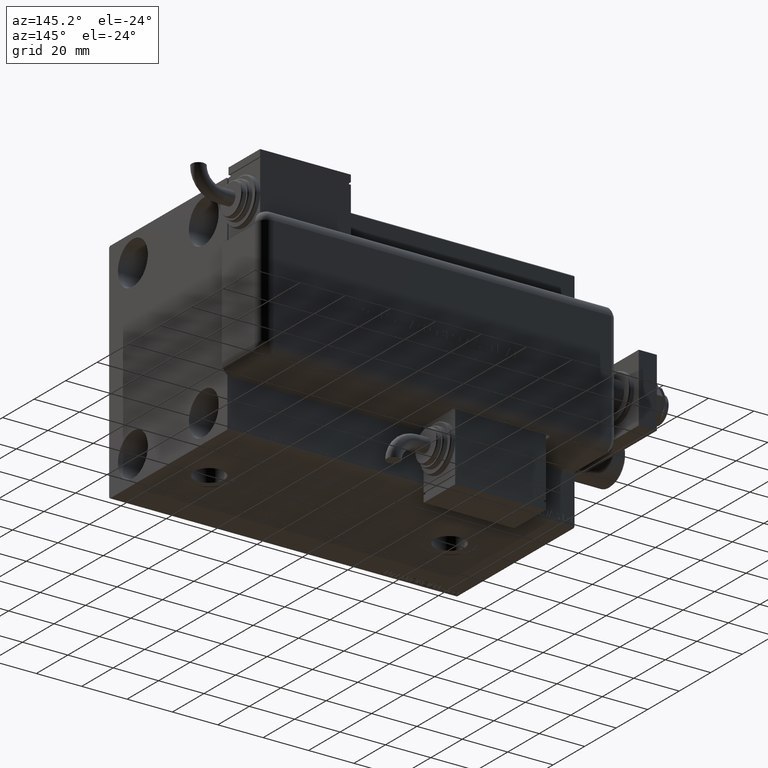
[diagram: clean part render]
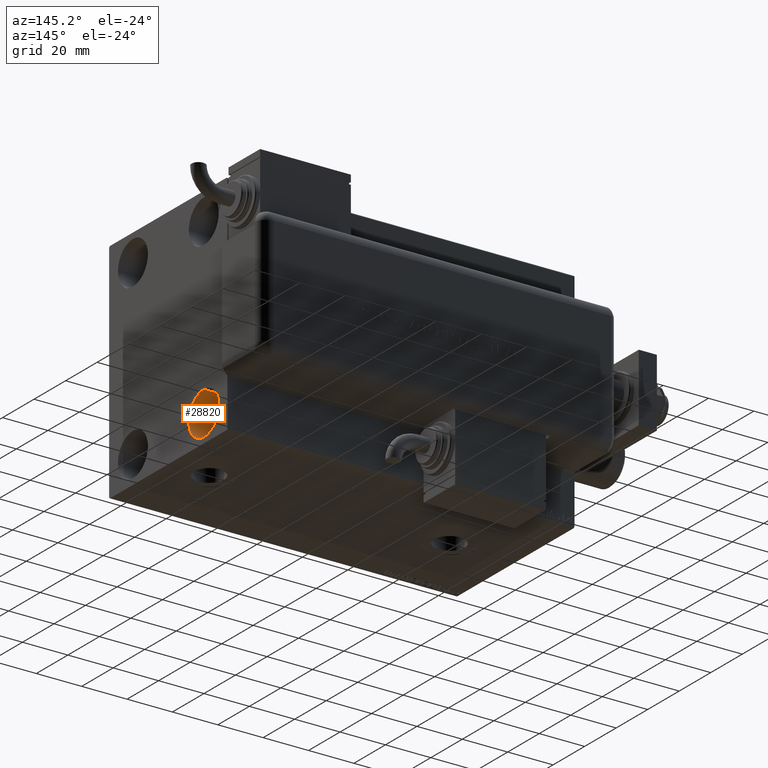
[diagram: same view with one face highlighted and labeled with its STEP entity id]
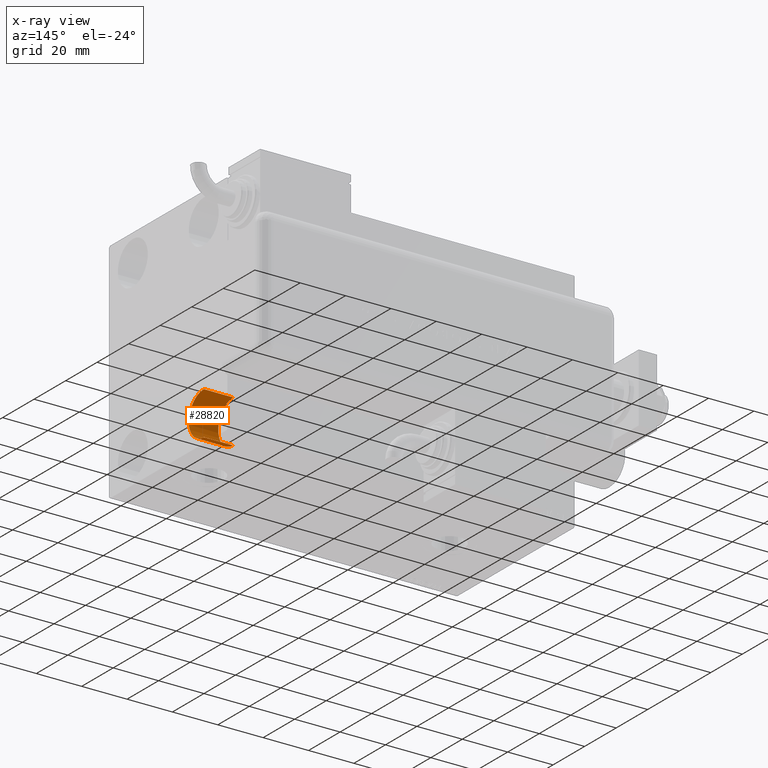
[diagram: x-ray of the same camera — body ghosted, the highlighted face saturated]
A machine part, auxiliary view. The second image highlights one B-rep face of the part: STEP entity #28820.
The next image is the same camera in x-ray: the body ghosted, the highlighted face saturated — about 0% of this face is hidden behind the body in this view.
In plain terms, the highlighted cylindrical surface (edge-blend (fillet) strip) has radius 9.5 mm, axis along (1, 0, 0).
Its self-contained STEP definition (entity closure, byte-faithful):
#1734 = ORIENTED_EDGE ( 'NONE', *, *, #39082, .F. ) ;
#2252 = EDGE_CURVE ( 'NONE', #32577, #52866, #5480, .T. ) ;
#3151 = ORIENTED_EDGE ( 'NONE', *, *, #2252, .T. ) ;
#5361 = LINE ( 'NONE', #14097, #20831 ) ;
#5480 = CIRCLE ( 'NONE', #43295, 9.500000000000001776 ) ;
#6105 = DIRECTION ( 'NONE',  ( 1.000000000000000000, -0.000000000000000000, -0.000000000000000000 ) ) ;
#7695 = DIRECTION ( 'NONE',  ( 0.000000000000000000, 0.000000000000000000, 1.000000000000000000 ) ) ;
#7986 = EDGE_LOOP ( 'NONE', ( #3151, #23955, #1734, #41595 ) ) ;
#14097 = CARTESIAN_POINT ( 'NONE',  ( 139.9999999999999716, 22.49999999999999645, -47.49999999999999289 ) ) ;
#15756 = LINE ( 'NONE', #34440, #17492 ) ;
#16822 = AXIS2_PLACEMENT_3D ( 'NONE', #28547, #47546, #58099 ) ;
#17492 = VECTOR ( 'NONE', #6105, 1000.000000000000000 ) ;
#18050 = CIRCLE ( 'NONE', #33974, 9.500000000000001776 ) ;
#20791 = EDGE_CURVE ( 'NONE', #52866, #43877, #15756, .T. ) ;
#20831 = VECTOR ( 'NONE', #34005, 1000.000000000000000 ) ;
#23358 = DIRECTION ( 'NONE',  ( -1.000000000000000000, -0.000000000000000000, -0.000000000000000000 ) ) ;
#23955 = ORIENTED_EDGE ( 'NONE', *, *, #20791, .T. ) ;
#27444 = CARTESIAN_POINT ( 'NONE',  ( 139.9999999999999716, 22.49999999999999645, -47.49999999999999289 ) ) ;
#28547 = CARTESIAN_POINT ( 'NONE',  ( 139.9999999999999716, 22.49999999999999645, -37.99999999999999289 ) ) ;
#28820 = ADVANCED_FACE ( 'NONE', ( #42863 ), #39107, .F. ) ;
#29848 = CARTESIAN_POINT ( 'NONE',  ( 153.0000000000000000, 22.49999999999999645, -28.49999999999998934 ) ) ;
#30114 = EDGE_CURVE ( 'NONE', #32577, #36604, #5361, .T. ) ;
#31344 = CARTESIAN_POINT ( 'NONE',  ( 153.0000000000000000, 22.49999999999999645, -37.99999999999999289 ) ) ;
#32577 = VERTEX_POINT ( 'NONE', #27444 ) ;
#33018 = DIRECTION ( 'NONE',  ( 0.000000000000000000, 0.000000000000000000, 1.000000000000000000 ) ) ;
#33974 = AXIS2_PLACEMENT_3D ( 'NONE', #31344, #50357, #7695 ) ;
#34005 = DIRECTION ( 'NONE',  ( 1.000000000000000000, -0.000000000000000000, -0.000000000000000000 ) ) ;
#34440 = CARTESIAN_POINT ( 'NONE',  ( 139.9999999999999716, 22.49999999999999645, -28.49999999999998934 ) ) ;
#36604 = VERTEX_POINT ( 'NONE', #44565 ) ;
#39082 = EDGE_CURVE ( 'NONE', #36604, #43877, #18050, .T. ) ;
#39107 = CYLINDRICAL_SURFACE ( 'NONE', #16822, 9.500000000000001776 ) ;
#41595 = ORIENTED_EDGE ( 'NONE', *, *, #30114, .F. ) ;
#42863 = FACE_OUTER_BOUND ( 'NONE', #7986, .T. ) ;
#43295 = AXIS2_PLACEMENT_3D ( 'NONE', #48591, #23358, #33018 ) ;
#43877 = VERTEX_POINT ( 'NONE', #29848 ) ;
#44565 = CARTESIAN_POINT ( 'NONE',  ( 153.0000000000000000, 22.49999999999999645, -47.49999999999999289 ) ) ;
#47546 = DIRECTION ( 'NONE',  ( 1.000000000000000000, -0.000000000000000000, -0.000000000000000000 ) ) ;
#48591 = CARTESIAN_POINT ( 'NONE',  ( 139.9999999999999716, 22.49999999999999645, -37.99999999999999289 ) ) ;
#50357 = DIRECTION ( 'NONE',  ( -1.000000000000000000, -0.000000000000000000, -0.000000000000000000 ) ) ;
#52866 = VERTEX_POINT ( 'NONE', #57190 ) ;
#57190 = CARTESIAN_POINT ( 'NONE',  ( 139.9999999999999716, 22.49999999999999645, -28.49999999999998934 ) ) ;
#58099 = DIRECTION ( 'NONE',  ( 0.000000000000000000, 0.000000000000000000, -1.000000000000000000 ) ) ;